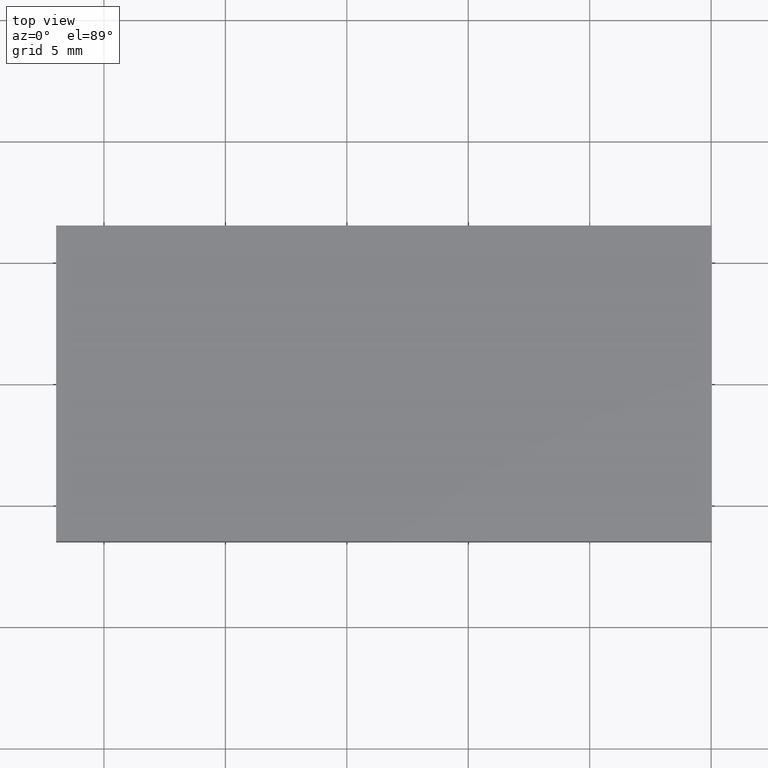
[diagram: clean part render]
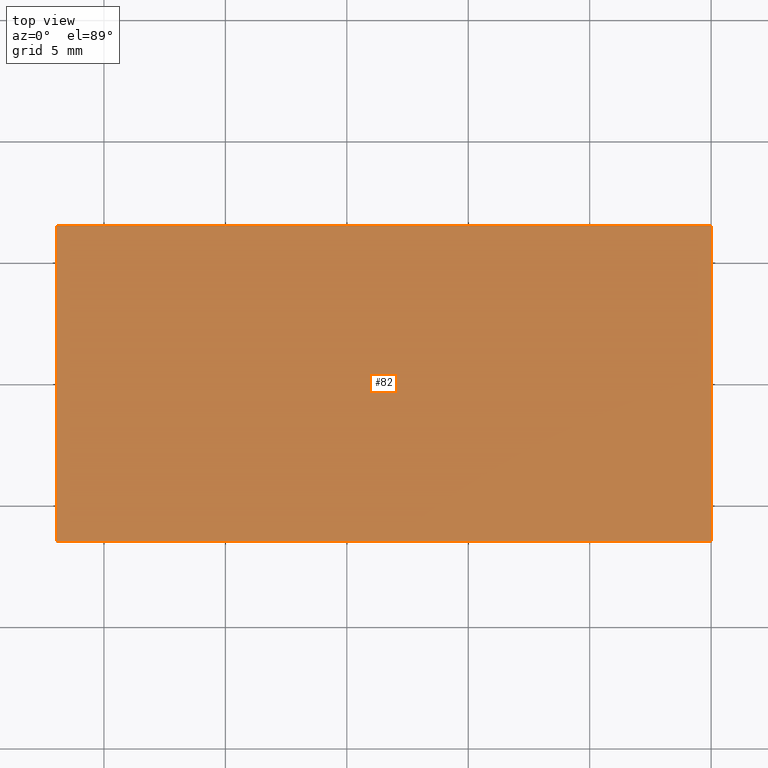
[diagram: same view with one face highlighted and labeled with its STEP entity id]
A machine part, top view. The second image highlights one B-rep face of the part: STEP entity #82.
In plain terms, the highlighted planar face has unit normal (0, 0, -1).
Its self-contained STEP definition (entity closure, byte-faithful):
#15 = ORIENTED_EDGE ( 'NONE', *, *, #203, .T. ) ;
#17 = CARTESIAN_POINT ( 'NONE',  ( -11.96875000000000178, -6.499999999999999112, 3.000000000000000000 ) ) ;
#19 = CARTESIAN_POINT ( 'NONE',  ( -11.96875000000000178, 6.500000000000000888, 3.000000000000000000 ) ) ;
#32 = DIRECTION ( 'NONE',  ( 0.0000000000000000000, -1.000000000000000000, 0.0000000000000000000 ) ) ;
#33 = ORIENTED_EDGE ( 'NONE', *, *, #144, .T. ) ;
#41 = ORIENTED_EDGE ( 'NONE', *, *, #230, .T. ) ;
#45 = VECTOR ( 'NONE', #234, 1000.000000000000000 ) ;
#47 = VECTOR ( 'NONE', #32, 1000.000000000000000 ) ;
#49 = CARTESIAN_POINT ( 'NONE',  ( 15.03124999999999645, -6.499999999999990230, 3.000000000000000000 ) ) ;
#60 = EDGE_CURVE ( 'NONE', #96, #175, #195, .T. ) ;
#65 = CARTESIAN_POINT ( 'NONE',  ( 0.0000000000000000000, 0.0000000000000000000, 3.000000000000000000 ) ) ;
#78 = DIRECTION ( 'NONE',  ( 1.334402673828314079E-16, 1.000000000000000000, -0.0000000000000000000 ) ) ;
#82 = ADVANCED_FACE ( 'NONE', ( #198 ), #87, .F. ) ;
#87 = PLANE ( 'NONE',  #100 ) ;
#96 = VERTEX_POINT ( 'NONE', #49 ) ;
#100 = AXIS2_PLACEMENT_3D ( 'NONE', #65, #215, #102 ) ;
#102 = DIRECTION ( 'NONE',  ( -1.000000000000000000, 0.0000000000000000000, -0.0000000000000000000 ) ) ;
#116 = CARTESIAN_POINT ( 'NONE',  ( 15.03124999999999822, 6.500000000000000888, 3.000000000000000000 ) ) ;
#120 = VERTEX_POINT ( 'NONE', #19 ) ;
#121 = CARTESIAN_POINT ( 'NONE',  ( 15.03124999999999822, 6.500000000000000888, 3.000000000000000000 ) ) ;
#144 = EDGE_CURVE ( 'NONE', #152, #96, #214, .T. ) ;
#147 = CARTESIAN_POINT ( 'NONE',  ( -11.96875000000000178, -6.499999999999999112, 3.000000000000000000 ) ) ;
#148 = LINE ( 'NONE', #178, #47 ) ;
#152 = VERTEX_POINT ( 'NONE', #17 ) ;
#161 = LINE ( 'NONE', #205, #169 ) ;
#169 = VECTOR ( 'NONE', #176, 1000.000000000000000 ) ;
#175 = VERTEX_POINT ( 'NONE', #121 ) ;
#176 = DIRECTION ( 'NONE',  ( -1.000000000000000000, -0.0000000000000000000, -0.0000000000000000000 ) ) ;
#178 = CARTESIAN_POINT ( 'NONE',  ( -11.96875000000000178, 6.500000000000000888, 3.000000000000000000 ) ) ;
#186 = ORIENTED_EDGE ( 'NONE', *, *, #60, .T. ) ;
#195 = LINE ( 'NONE', #116, #231 ) ;
#198 = FACE_OUTER_BOUND ( 'NONE', #227, .T. ) ;
#203 = EDGE_CURVE ( 'NONE', #175, #120, #161, .T. ) ;
#205 = CARTESIAN_POINT ( 'NONE',  ( -11.96875000000000178, 6.500000000000000888, 3.000000000000000000 ) ) ;
#214 = LINE ( 'NONE', #147, #45 ) ;
#215 = DIRECTION ( 'NONE',  ( 0.0000000000000000000, 0.0000000000000000000, -1.000000000000000000 ) ) ;
#227 = EDGE_LOOP ( 'NONE', ( #15, #41, #33, #186 ) ) ;
#230 = EDGE_CURVE ( 'NONE', #120, #152, #148, .T. ) ;
#231 = VECTOR ( 'NONE', #78, 1000.000000000000000 ) ;
#234 = DIRECTION ( 'NONE',  ( 1.000000000000000000, 3.212450881438532241E-16, 0.0000000000000000000 ) ) ;